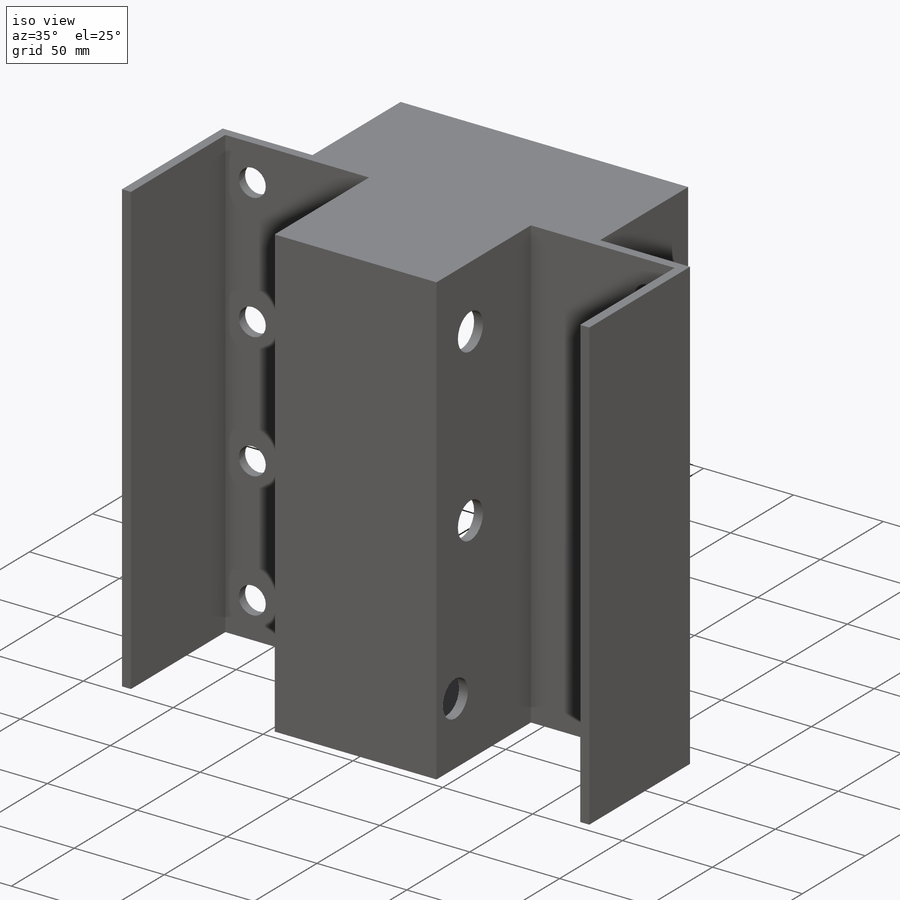
[diagram: iso view]
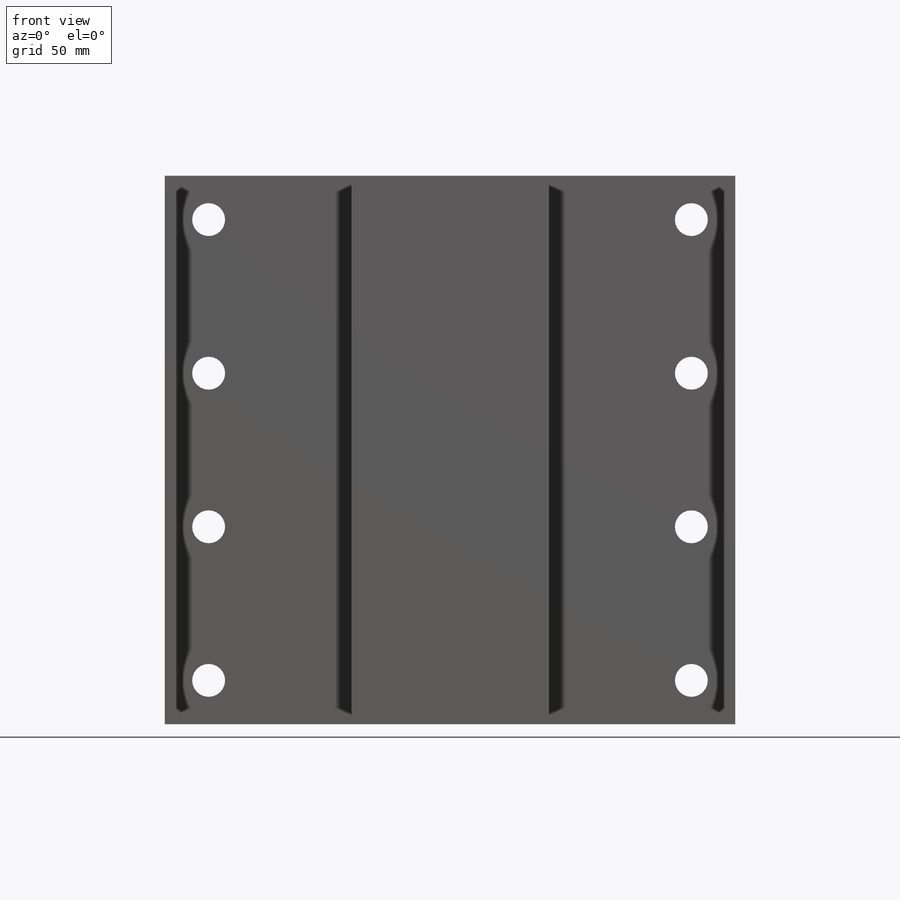
[diagram: front view]
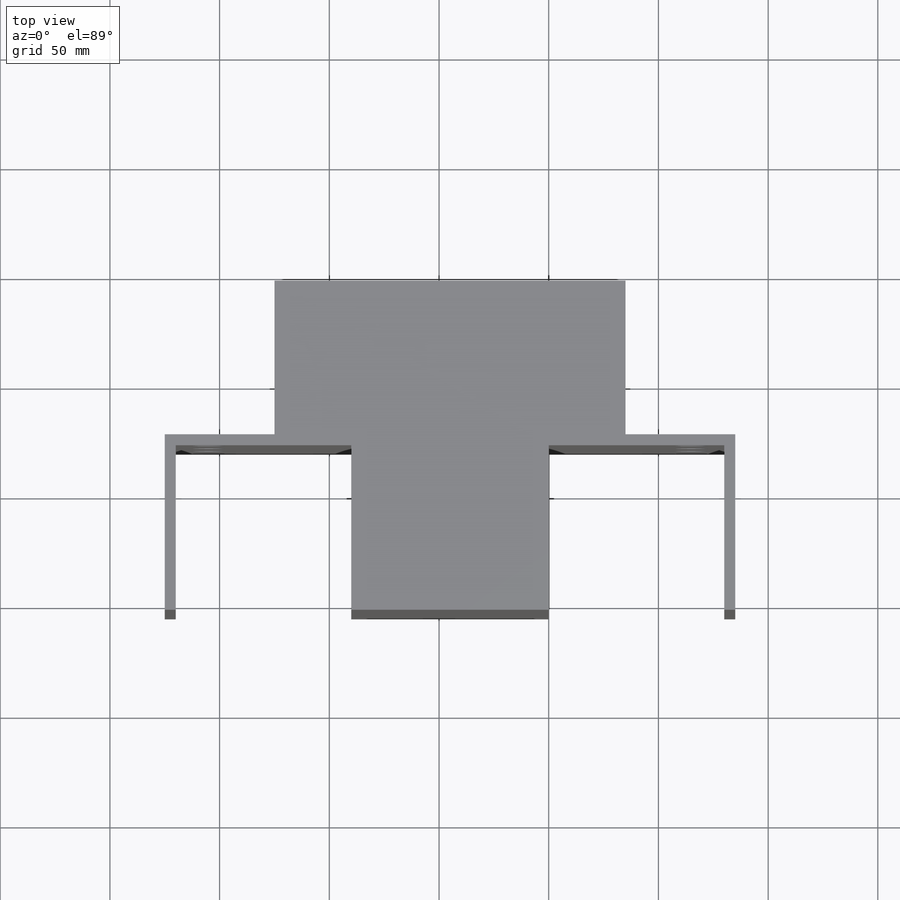
[diagram: top view]
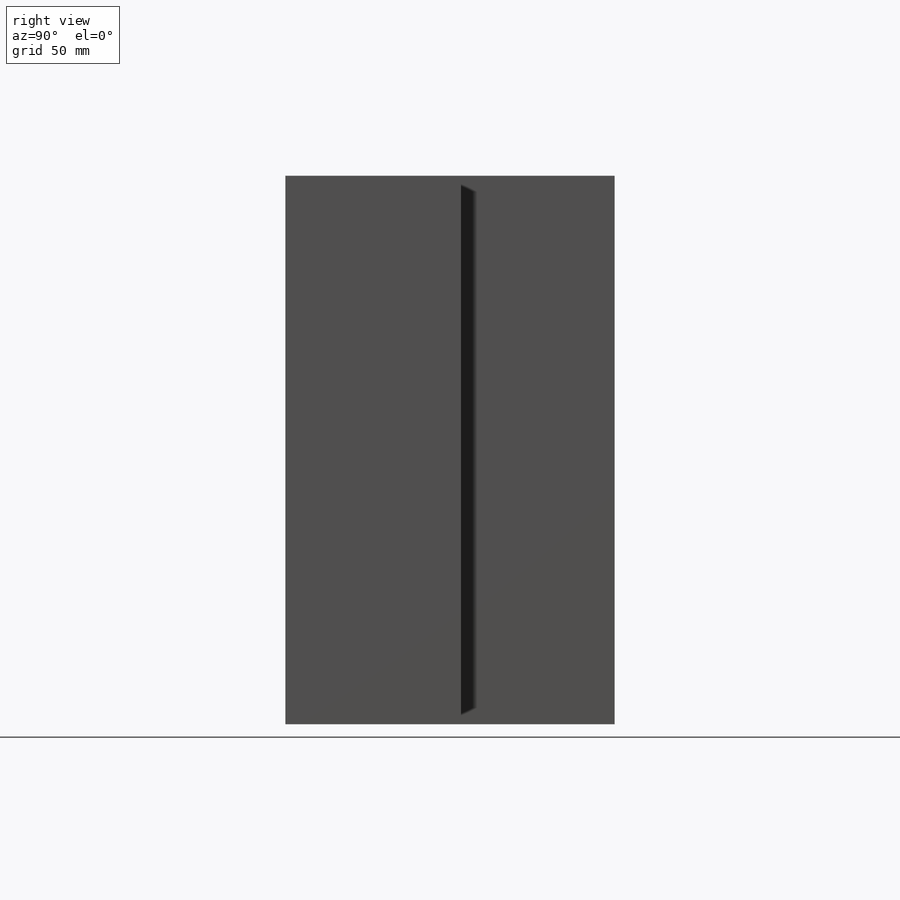
[diagram: right view]
SOLIDWORKS PART (.sldprt)
format: sldprt  version: not decoded by parser v0  size: 314,880 bytes
history: native  units: mm
features: sketch x9, extrude x6, plane x3, cut_extrude x3, material x1, mirror x1 (+9 scaffold rows collapsed)
feature tree (32):
  scaffold x9  (default folders/planes/origin — collapsed)
  material  "Matériau <non spécifié>"
  plane  "Plan de face"
  plane  "Plan de dessus"
  plane  "Plan de droite"
  sketch  "Esquisse1"  dims[D1=250.0mm D2=90.0mm]
  extrude  "Boss.-Extru.1"  Depth=5mm
  sketch  "Esquisse2"  dims[D2=80.0mm D1=5.0mm]
  extrude  "Boss.-Extru.2"  Depth=70mm
  sketch  "Esquisse3"  dims[D1=80.0mm]
  extrude  "Boss.-Extru.3"  Depth=5mm
  mirror  "Symétrie1"
  sketch  "Esquisse4"  dims[c1.D1=~19.56852mm c1.D3=60.0mm c1.D4=20.0mm c1.D6=20.0mm c2.D1=27.0mm c2.D2=35.0mm c2.D7=15.0mm c2.D8=35.0mm c2.D5=3.0]
  cut_extrude  "Enlèv. mat.-Extru.2"  [1 undecoded]
  sketch  "Esquisse5"
  extrude  "Boss.-Extru.4"  Depth=5mm
  sketch  "Esquisse6"
  extrude  "Boss.-Extru.5"  Depth=5mm
  sketch  "Esquisse7"  dims[D1=50.0mm D2=50.0mm D3=5.0mm]
  extrude  "Boss.-Extru.6"  Depth=70mm
  sketch  "Esquisse10"  dims[c1.D1=15.0mm c1.D2=15.0mm c1.D5=15.0mm c1.D3=20.0mm c1.D4=20.0mm c2.D5=20.0mm c2.D6=20.0mm c2.D7=4.0]
  cut_extrude  "Enlèv. mat.-Extru.3"  Depth=50mm
  sketch  "Esquisse12"  dims[D1=40.0mm D2=40.0mm D3=50.0mm D4=50.0mm]
  cut_extrude  "Enlèv. mat.-Extru.4"  Depth=10mm
decode coverage: 15 of 19 modeling features carry decoded parameters
note: ~ marks probable driven/reference dimensions
note: 1 parameter value undecoded
note: suppression state not decoded; provenance and decode notes live in map.json
